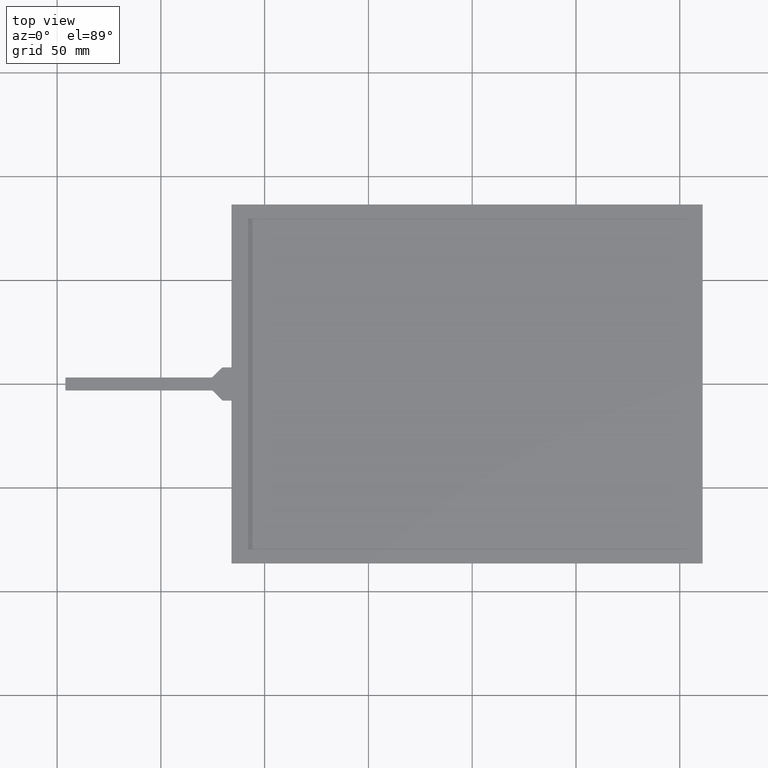
[diagram: clean part render]
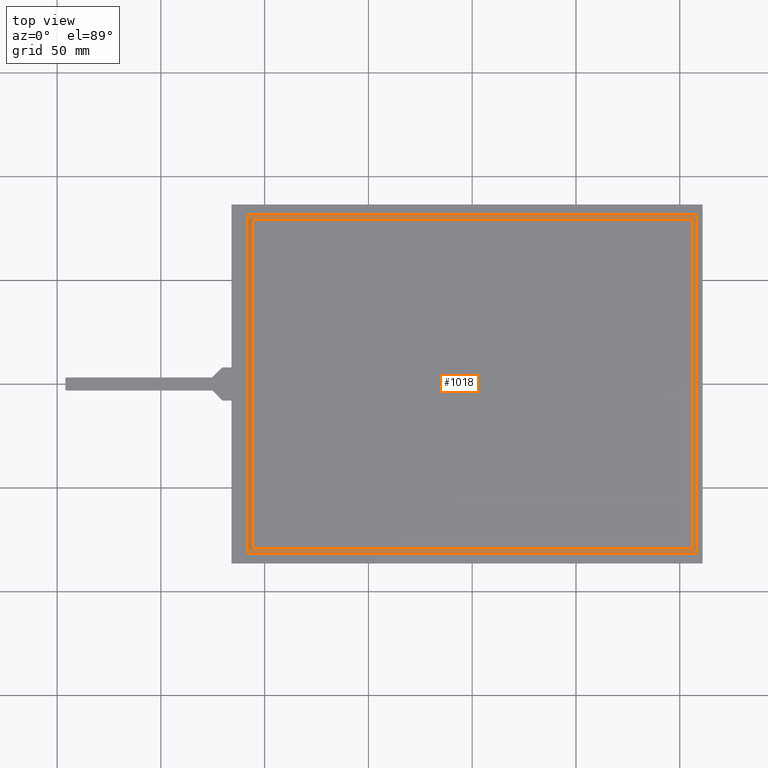
[diagram: same view with one face highlighted and labeled with its STEP entity id]
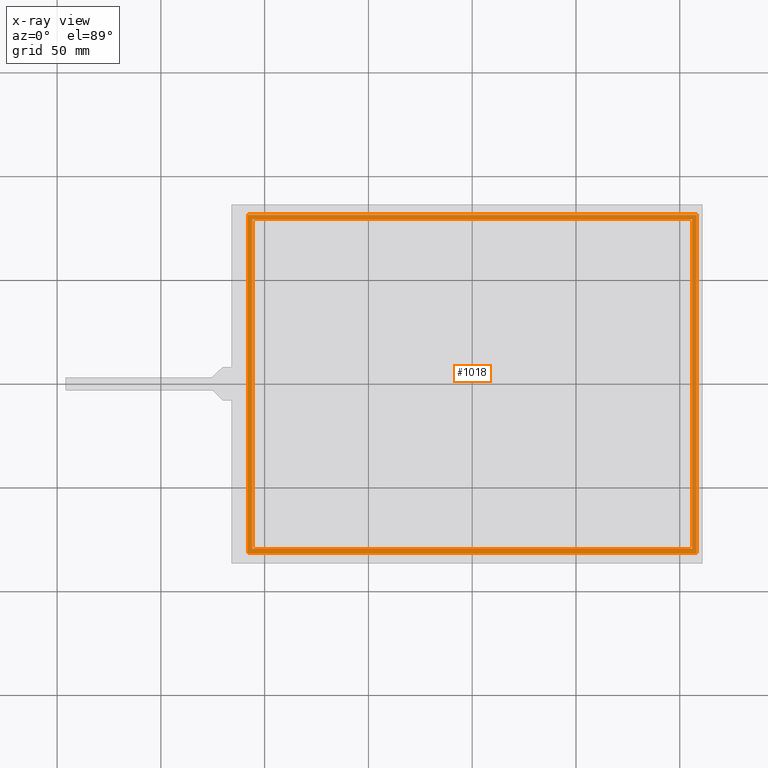
[diagram: x-ray of the same camera — body ghosted, the highlighted face saturated]
A machine part, top view. The second image highlights one B-rep face of the part: STEP entity #1018.
The next image is the same camera in x-ray: the body ghosted, the highlighted face saturated — about 0% of this face is hidden behind the body in this view.
In plain terms, the highlighted planar face has unit normal (0, 0, -1).
Its self-contained STEP definition (entity closure, byte-faithful):
#46=FACE_BOUND('',#189,.T.);
#86=PLANE('',#1101);
#137=FACE_OUTER_BOUND('',#188,.T.);
#188=EDGE_LOOP('',(#925,#926,#927,#928));
#189=EDGE_LOOP('',(#929,#930,#931,#932));
#291=LINE('',#1576,#417);
#295=LINE('',#1583,#421);
#298=LINE('',#1589,#424);
#300=LINE('',#1592,#426);
#303=LINE('',#1600,#429);
#307=LINE('',#1607,#433);
#310=LINE('',#1613,#436);
#312=LINE('',#1616,#438);
#417=VECTOR('',#1299,10.);
#421=VECTOR('',#1305,10.);
#424=VECTOR('',#1310,10.);
#426=VECTOR('',#1314,10.);
#429=VECTOR('',#1319,10.);
#433=VECTOR('',#1325,10.);
#436=VECTOR('',#1330,10.);
#438=VECTOR('',#1334,10.);
#533=VERTEX_POINT('',#1573);
#534=VERTEX_POINT('',#1575);
#536=VERTEX_POINT('',#1581);
#538=VERTEX_POINT('',#1587);
#541=VERTEX_POINT('',#1597);
#542=VERTEX_POINT('',#1599);
#544=VERTEX_POINT('',#1605);
#546=VERTEX_POINT('',#1611);
#659=EDGE_CURVE('',#533,#534,#291,.T.);
#663=EDGE_CURVE('',#536,#533,#295,.T.);
#666=EDGE_CURVE('',#538,#536,#298,.T.);
#668=EDGE_CURVE('',#534,#538,#300,.T.);
#671=EDGE_CURVE('',#541,#542,#303,.T.);
#675=EDGE_CURVE('',#544,#541,#307,.T.);
#678=EDGE_CURVE('',#546,#544,#310,.T.);
#680=EDGE_CURVE('',#542,#546,#312,.T.);
#925=ORIENTED_EDGE('',*,*,#680,.F.);
#926=ORIENTED_EDGE('',*,*,#671,.F.);
#927=ORIENTED_EDGE('',*,*,#675,.F.);
#928=ORIENTED_EDGE('',*,*,#678,.F.);
#929=ORIENTED_EDGE('',*,*,#668,.F.);
#930=ORIENTED_EDGE('',*,*,#659,.F.);
#931=ORIENTED_EDGE('',*,*,#663,.F.);
#932=ORIENTED_EDGE('',*,*,#666,.F.);
#1018=ADVANCED_FACE('',(#137,#46),#86,.F.);
#1101=AXIS2_PLACEMENT_3D('',#1617,#1335,#1336);
#1299=DIRECTION('',(1.,0.,0.));
#1305=DIRECTION('',(0.,-1.,0.));
#1310=DIRECTION('',(-1.,0.,0.));
#1314=DIRECTION('',(0.,1.,0.));
#1319=DIRECTION('',(-1.08978947202469E-16,1.,0.));
#1325=DIRECTION('',(-1.,-8.22387425648264E-17,0.));
#1330=DIRECTION('',(0.,-1.,0.));
#1334=DIRECTION('',(1.,0.,0.));
#1335=DIRECTION('center_axis',(0.,0.,-1.));
#1336=DIRECTION('ref_axis',(-1.,0.,0.));
#1573=CARTESIAN_POINT('',(-106.,-79.5,-0.1));
#1575=CARTESIAN_POINT('',(106.,-79.5,-0.1));
#1576=CARTESIAN_POINT('',(106.,-79.5,-0.1));
#1581=CARTESIAN_POINT('',(-106.,79.5,-0.1));
#1583=CARTESIAN_POINT('',(-106.,-79.5,-0.1));
#1587=CARTESIAN_POINT('',(106.,79.5,-0.1));
#1589=CARTESIAN_POINT('',(-106.,79.5,-0.1));
#1592=CARTESIAN_POINT('',(106.,79.5,-0.1));
#1597=CARTESIAN_POINT('',(-108.,-81.5,-0.1));
#1599=CARTESIAN_POINT('',(-108.,81.5,-0.1));
#1600=CARTESIAN_POINT('',(-108.,81.5,-0.1));
#1605=CARTESIAN_POINT('',(108.,-81.5,-0.1));
#1607=CARTESIAN_POINT('',(-108.,-81.5,-0.1));
#1611=CARTESIAN_POINT('',(108.,81.5,-0.1));
#1613=CARTESIAN_POINT('',(108.,-81.5,-0.1));
#1616=CARTESIAN_POINT('',(108.,81.5,-0.1));
#1617=CARTESIAN_POINT('Origin',(0.,0.,-0.1));